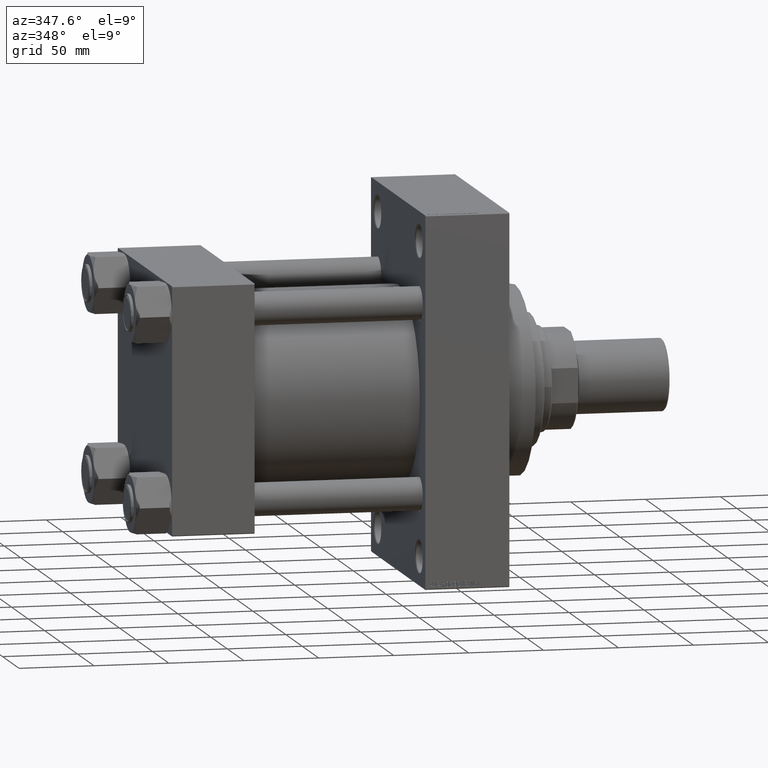
[diagram: clean part render]
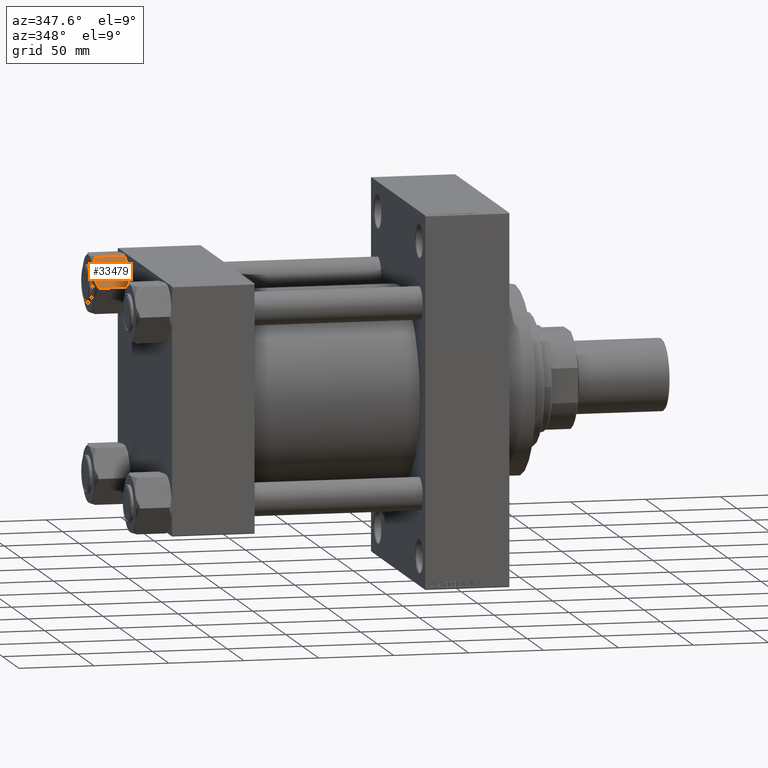
[diagram: same view with one face highlighted and labeled with its STEP entity id]
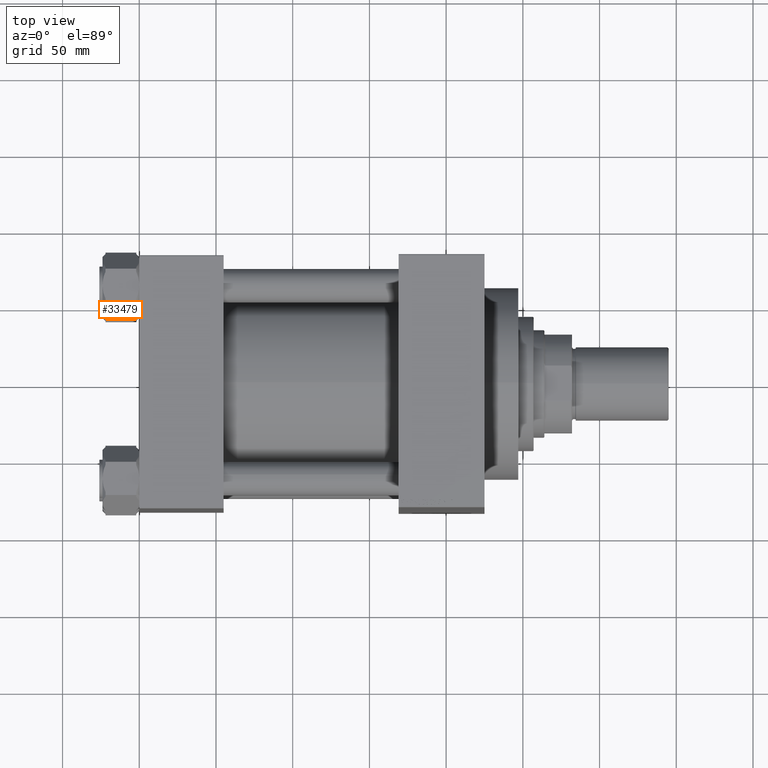
[diagram: same view with one face highlighted and labeled with its STEP entity id]
A machine part, auxiliary view. The second image highlights one B-rep face of the part: STEP entity #33479.
A second angle (top view) of the same face is appended — the face is thin or edge-on in the first view.
In plain terms, the highlighted planar face has unit normal (0, 0.866, -0.5).
Its self-contained STEP definition (entity closure, byte-faithful):
#194 = LINE ( 'NONE', #4074, #21161 ) ;
#379 = LINE ( 'NONE', #38341, #10299 ) ;
#527 = DIRECTION ( 'NONE',  ( -0.000000000000000000, -0.000000000000000000, 1.000000000000000000 ) ) ;
#1876 = CARTESIAN_POINT ( 'NONE',  ( -20.30204076991168449, -2.282772348817309283, -22.30351413196914123 ) ) ;
#2149 = AXIS2_PLACEMENT_3D ( 'NONE', #15849, #27064, #38243 ) ;
#2244 = EDGE_CURVE ( 'NONE', #39566, #36028, #6927, .T. ) ;
#2316 = EDGE_CURVE ( 'NONE', #2588, #8386, #34800, .T. ) ;
#2583 = CARTESIAN_POINT ( 'NONE',  ( -19.21365948880452379, -4.167904025701819393, -23.07491496110390372 ) ) ;
#2588 = VERTEX_POINT ( 'NONE', #15242 ) ;
#3264 = CARTESIAN_POINT ( 'NONE',  ( -11.77388873931088220, -17.05396496048960842, -2.000000000000000000 ) ) ;
#3300 = DIRECTION ( 'NONE',  ( -0.4999999999999993894, 0.8660254037844389297, 0.000000000000000000 ) ) ;
#3707 = VECTOR ( 'NONE', #10640, 1000.000000000000114 ) ;
#4074 = CARTESIAN_POINT ( 'NONE',  ( -10.81000000000000227, -18.72346922981957107, -22.00000000000000000 ) ) ;
#4306 = B_SPLINE_CURVE_WITH_KNOTS ( 'NONE', 3,
 ( #23799, #16007, #24039, #45721, #5278, #46445, #38882, #16246, #19658, #12341 ),
 .UNSPECIFIED., .F., .F.,
 ( 4, 2, 2, 2, 4 ),
 ( 5.007809737585758646E-07, 0.004555175037830412263, 0.006832512166258740936, 0.007971180730472903972, 0.009109849294687066140 ),
 .UNSPECIFIED. ) ;
#4488 = CARTESIAN_POINT ( 'NONE',  ( -16.21500000000001762, -9.361734614909776653, -24.00000000000000000 ) ) ;
#4554 = CARTESIAN_POINT ( 'NONE',  ( -20.65611126068912640, -1.669504269329924240, -22.00000000000000000 ) ) ;
#5052 = CARTESIAN_POINT ( 'NONE',  ( -12.48121638205395278, -15.82883754566067758, -22.60633105863623271 ) ) ;
#5278 = CARTESIAN_POINT ( 'NONE',  ( -17.74616263960890805, -6.709683128455873558, -0.2338220771833849909 ) ) ;
#5295 = CARTESIAN_POINT ( 'NONE',  ( -15.82895367481208737, -10.03038646421051006, -23.98802662332919766 ) ) ;
#5537 = CARTESIAN_POINT ( 'NONE',  ( -13.58342913161266807, -13.91974906267480350, -0.7123487060405448990 ) ) ;
#5662 = B_SPLINE_CURVE_WITH_KNOTS ( 'NONE', 3,
 ( #24761, #28174, #10132, #20387, #2583, #27937, #1876, #6482 ),
 .UNSPECIFIED., .F., .F.,
 ( 4, 2, 2, 4 ),
 ( 0.009109849294687067875, 0.01366157320126715896, 0.01593743515455720017, 0.01821329710784724484 ),
 .UNSPECIFIED. ) ;
#6482 = CARTESIAN_POINT ( 'NONE',  ( -20.65611126068912640, -1.669504269329924240, -22.00000000000000000 ) ) ;
#6927 = B_SPLINE_CURVE_WITH_KNOTS ( 'NONE', 3,
 ( #15770, #5052, #45009, #34771, #26737, #45982, #26502, #5295, #12594, #37689 ),
 .UNSPECIFIED., .F., .F.,
 ( 4, 2, 2, 2, 4 ),
 ( 5.007809737492852896E-07, 0.004555175037830406191, 0.006832512166258735732, 0.007971180730472900502, 0.009109849294687067875 ),
 .UNSPECIFIED. ) ;
#8386 = VERTEX_POINT ( 'NONE', #3264 ) ;
#8586 = CARTESIAN_POINT ( 'NONE',  ( -10.81000000000000227, -18.72346922981957107, -24.00000000000000000 ) ) ;
#8733 = VERTEX_POINT ( 'NONE', #36822 ) ;
#9433 = CARTESIAN_POINT ( 'NONE',  ( -15.44689116237993076, -10.69213814741041624, 1.408785197873352008E-14 ) ) ;
#10132 = CARTESIAN_POINT ( 'NONE',  ( -17.73599980468854653, -6.727285674886865685, -23.80918115964521675 ) ) ;
#10299 = VECTOR ( 'NONE', #45910, 1000.000000000000114 ) ;
#10640 = DIRECTION ( 'NONE',  ( 0.4999999999999993894, -0.8660254037844389297, 0.000000000000000000 ) ) ;
#11678 = CARTESIAN_POINT ( 'NONE',  ( -10.81000000000000227, -18.72346922981957107, -2.000000000000001776 ) ) ;
#11718 = ORIENTED_EDGE ( 'NONE', *, *, #34536, .F. ) ;
#12341 = CARTESIAN_POINT ( 'NONE',  ( -16.21500000000001762, -9.361734614909776653, 0.000000000000000000 ) ) ;
#12594 = CARTESIAN_POINT ( 'NONE',  ( -16.02284832181305418, -9.694551084289209086, -24.00000000000001776 ) ) ;
#13184 = VERTEX_POINT ( 'NONE', #4554 ) ;
#13528 = EDGE_LOOP ( 'NONE', ( #32261, #47194, #25268, #27628, #34556, #23380, #11718, #22785, #22803, #20565 ) ) ;
#13561 = CARTESIAN_POINT ( 'NONE',  ( -14.69400019531146029, -11.99618355493266897, -0.1908188403547822765 ) ) ;
#15242 = CARTESIAN_POINT ( 'NONE',  ( -16.21500000000001762, -9.361734614909776653, 0.000000000000000000 ) ) ;
#15250 = CARTESIAN_POINT ( 'NONE',  ( -21.62000000000000099, 1.669698520835173435E-14, -2.000000000000001776 ) ) ;
#15569 = VERTEX_POINT ( 'NONE', #11678 ) ;
#15770 = CARTESIAN_POINT ( 'NONE',  ( -11.77388873931088042, -17.05396496048961552, -22.00000000000000000 ) ) ;
#15849 = CARTESIAN_POINT ( 'NONE',  ( -10.81000000000000227, -18.72346922981957107, -24.00000000000000000 ) ) ;
#16007 = CARTESIAN_POINT ( 'NONE',  ( -19.94878361794604515, -2.894631684158861074, -1.393668941363769287 ) ) ;
#16246 = CARTESIAN_POINT ( 'NONE',  ( -16.60104632518793011, -8.693082765609036144, -0.01197337667081199535 ) ) ;
#18932 = CARTESIAN_POINT ( 'NONE',  ( -10.81000000000000227, -18.72346922981957107, -22.00000000000000000 ) ) ;
#18949 = DIRECTION ( 'NONE',  ( -0.4999999999999993894, 0.8660254037844389297, 0.000000000000000000 ) ) ;
#19027 = EDGE_CURVE ( 'NONE', #13184, #8733, #194, .T. ) ;
#19658 = CARTESIAN_POINT ( 'NONE',  ( -16.40715167818697040, -9.028918145530337114, 1.384475352287154220E-14 ) ) ;
#20387 = CARTESIAN_POINT ( 'NONE',  ( -18.84657086838734230, -4.803720167144733821, -23.28765129395944555 ) ) ;
#20565 = ORIENTED_EDGE ( 'NONE', *, *, #2244, .F. ) ;
#20789 = EDGE_CURVE ( 'NONE', #36028, #13184, #5662, .T. ) ;
#20923 = EDGE_CURVE ( 'NONE', #8386, #15569, #379, .T. ) ;
#21161 = VECTOR ( 'NONE', #18949, 1000.000000000000114 ) ;
#21825 = CARTESIAN_POINT ( 'NONE',  ( -10.81000000000000227, -18.72346922981957107, -22.00000000000000000 ) ) ;
#21854 = LINE ( 'NONE', #44263, #3707 ) ;
#22349 = EDGE_CURVE ( 'NONE', #34852, #15569, #30745, .T. ) ;
#22785 = ORIENTED_EDGE ( 'NONE', *, *, #19027, .F. ) ;
#22803 = ORIENTED_EDGE ( 'NONE', *, *, #20789, .F. ) ;
#23380 = ORIENTED_EDGE ( 'NONE', *, *, #32954, .F. ) ;
#23774 = VECTOR ( 'NONE', #3300, 1000.000000000000114 ) ;
#23799 = CARTESIAN_POINT ( 'NONE',  ( -20.65611126068912284, -1.669504269329930457, -2.000000000000000000 ) ) ;
#24039 = CARTESIAN_POINT ( 'NONE',  ( -19.22845374672207441, -4.142279619328344431, -0.8936198542777825660 ) ) ;
#24761 = CARTESIAN_POINT ( 'NONE',  ( -16.21500000000001762, -9.361734614909776653, -24.00000000000000000 ) ) ;
#25268 = ORIENTED_EDGE ( 'NONE', *, *, #20923, .F. ) ;
#26354 = VERTEX_POINT ( 'NONE', #15250 ) ;
#26502 = CARTESIAN_POINT ( 'NONE',  ( -15.44401067499412505, -10.69712729791319283, -23.94054132287644876 ) ) ;
#26737 = CARTESIAN_POINT ( 'NONE',  ( -14.68383736039110588, -12.01378610136366376, -23.76617792281661323 ) ) ;
#27064 = DIRECTION ( 'NONE',  ( 0.8660254037844390407, 0.4999999999999994449, 0.000000000000000000 ) ) ;
#27628 = ORIENTED_EDGE ( 'NONE', *, *, #2316, .F. ) ;
#27703 = CARTESIAN_POINT ( 'NONE',  ( -12.12795923008832943, -16.44069688100223203, -1.696485868030861432 ) ) ;
#27937 = CARTESIAN_POINT ( 'NONE',  ( -19.94246781890516118, -2.905570968988080871, -22.58212083167677520 ) ) ;
#28174 = CARTESIAN_POINT ( 'NONE',  ( -16.98310883762008316, -8.031331082409121080, -24.00000000000002132 ) ) ;
#28421 = CARTESIAN_POINT ( 'NONE',  ( -12.48753218109485275, -15.81789826083145378, -1.417879168323221251 ) ) ;
#28657 = CARTESIAN_POINT ( 'NONE',  ( -13.21634051119548836, -14.55556520411771970, -0.9250850388960920601 ) ) ;
#29855 = EDGE_CURVE ( 'NONE', #32817, #2588, #4306, .T. ) ;
#30745 = LINE ( 'NONE', #8586, #46925 ) ;
#31127 = CARTESIAN_POINT ( 'NONE',  ( -20.65611126068912284, -1.669504269329930457, -2.000000000000000000 ) ) ;
#31562 = EDGE_CURVE ( 'NONE', #34852, #39566, #40329, .T. ) ;
#32261 = ORIENTED_EDGE ( 'NONE', *, *, #31562, .F. ) ;
#32817 = VERTEX_POINT ( 'NONE', #31127 ) ;
#32954 = EDGE_CURVE ( 'NONE', #26354, #32817, #21854, .T. ) ;
#33479 = ADVANCED_FACE ( 'NONE', ( #34354 ), #42151, .F. ) ;
#33890 = LINE ( 'NONE', #40727, #42155 ) ;
#34354 = FACE_OUTER_BOUND ( 'NONE', #13528, .T. ) ;
#34536 = EDGE_CURVE ( 'NONE', #8733, #26354, #33890, .T. ) ;
#34556 = ORIENTED_EDGE ( 'NONE', *, *, #29855, .F. ) ;
#34771 = CARTESIAN_POINT ( 'NONE',  ( -14.30978229978947525, -12.66166847115395022, -23.62969313679645111 ) ) ;
#34800 = B_SPLINE_CURVE_WITH_KNOTS ( 'NONE', 3,
 ( #46934, #9433, #13561, #5537, #28657, #28421, #27703, #39619 ),
 .UNSPECIFIED., .F., .F.,
 ( 4, 2, 2, 4 ),
 ( 0.009109849294687066140, 0.01366157320126715896, 0.01593743515455720364, 0.01821329710784724484 ),
 .UNSPECIFIED. ) ;
#34852 = VERTEX_POINT ( 'NONE', #18932 ) ;
#36028 = VERTEX_POINT ( 'NONE', #4488 ) ;
#36822 = CARTESIAN_POINT ( 'NONE',  ( -21.62000000000000099, 1.669698520835173435E-14, -22.00000000000000000 ) ) ;
#37689 = CARTESIAN_POINT ( 'NONE',  ( -16.21500000000001762, -9.361734614909776653, -24.00000000000000000 ) ) ;
#38243 = DIRECTION ( 'NONE',  ( -0.4999999999999993894, 0.8660254037844389297, 0.000000000000000000 ) ) ;
#38341 = CARTESIAN_POINT ( 'NONE',  ( -10.81000000000000227, -18.72346922981957107, -2.000000000000001776 ) ) ;
#38882 = CARTESIAN_POINT ( 'NONE',  ( -16.98598932500589598, -8.026341931906348037, -0.05945867712355460549 ) ) ;
#39566 = VERTEX_POINT ( 'NONE', #45581 ) ;
#39619 = CARTESIAN_POINT ( 'NONE',  ( -11.77388873931088220, -17.05396496048960842, -2.000000000000000000 ) ) ;
#40329 = LINE ( 'NONE', #21825, #23774 ) ;
#40727 = CARTESIAN_POINT ( 'NONE',  ( -21.62000000000000099, 1.669698520835173435E-14, -24.00000000000000000 ) ) ;
#42151 = PLANE ( 'NONE',  #2149 ) ;
#42155 = VECTOR ( 'NONE', #527, 1000.000000000000000 ) ;
#42444 = DIRECTION ( 'NONE',  ( -0.000000000000000000, -0.000000000000000000, 1.000000000000000000 ) ) ;
#44263 = CARTESIAN_POINT ( 'NONE',  ( -10.81000000000000227, -18.72346922981957107, -2.000000000000001776 ) ) ;
#45009 = CARTESIAN_POINT ( 'NONE',  ( -13.20154625327793418, -14.58118961049120266, -23.10638014572221977 ) ) ;
#45581 = CARTESIAN_POINT ( 'NONE',  ( -11.77388873931088042, -17.05396496048961552, -22.00000000000000000 ) ) ;
#45721 = CARTESIAN_POINT ( 'NONE',  ( -18.12021770021052802, -6.061800758665592426, -0.3703068632035558805 ) ) ;
#45910 = DIRECTION ( 'NONE',  ( 0.4999999999999993894, -0.8660254037844389297, 0.000000000000000000 ) ) ;
#45982 = CARTESIAN_POINT ( 'NONE',  ( -15.25296234352182978, -11.02803271472447477, -23.90516550165011012 ) ) ;
#46445 = CARTESIAN_POINT ( 'NONE',  ( -17.17703765647818770, -7.695436515095067875, -0.09483449834988089133 ) ) ;
#46925 = VECTOR ( 'NONE', #42444, 1000.000000000000000 ) ;
#46934 = CARTESIAN_POINT ( 'NONE',  ( -16.21500000000001762, -9.361734614909776653, 0.000000000000000000 ) ) ;
#47194 = ORIENTED_EDGE ( 'NONE', *, *, #22349, .T. ) ;